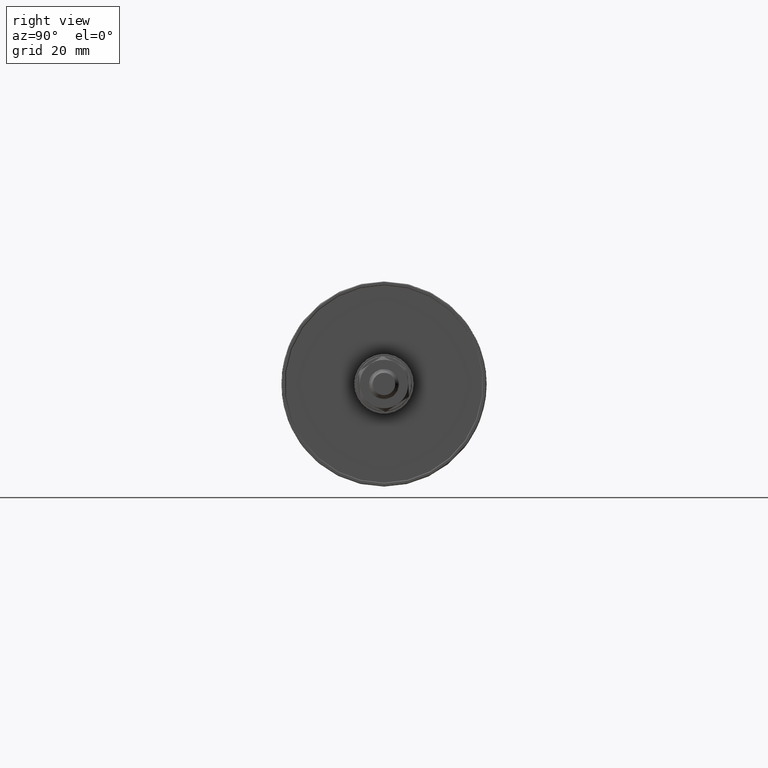
[diagram: clean part render]
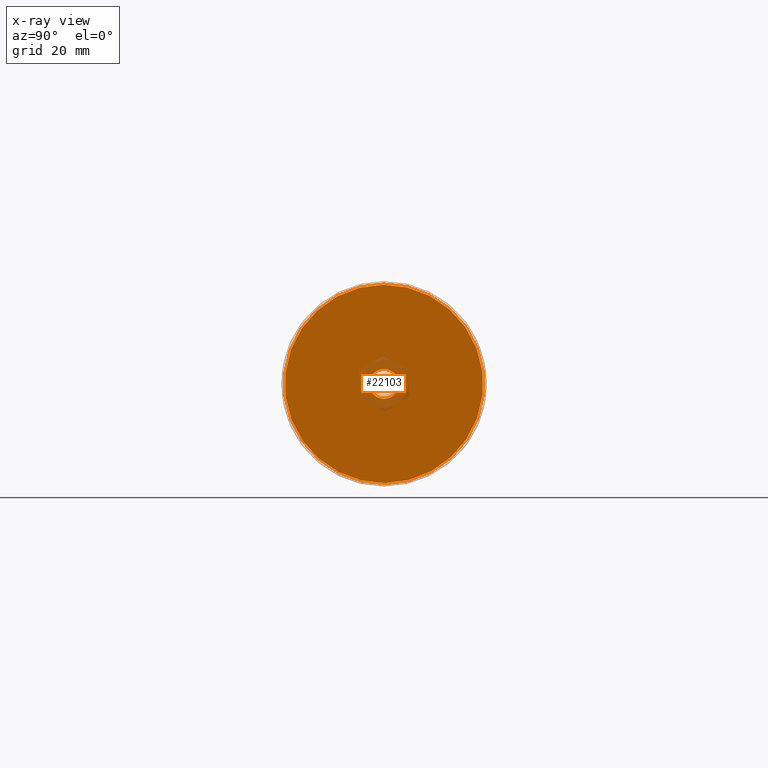
[diagram: x-ray — body ghosted, one internal face saturated and labeled with its STEP entity id]
A machine part, right view, then the same camera in x-ray: the body is ghosted and one INTERNAL B-rep face — a face not visible from any outside direction — is saturated and labeled: STEP entity #22103.
In plain terms, the highlighted planar face has unit normal (-1, 0, 0).
Its self-contained STEP definition (entity closure, byte-faithful):
#197 = VERTEX_POINT ( 'NONE', #13874 ) ;
#199 = DIRECTION ( 'NONE',  ( -1.224646799147353454E-16, 1.000000000000000000, 0.000000000000000000 ) ) ;
#784 = EDGE_LOOP ( 'NONE', ( #7041, #6694 ) ) ;
#848 = EDGE_CURVE ( 'NONE', #19541, #2161, #11172, .T. ) ;
#1103 = EDGE_LOOP ( 'NONE', ( #9398, #19747 ) ) ;
#1208 = CIRCLE ( 'NONE', #24588, 26.60000000000000142 ) ;
#2161 = VERTEX_POINT ( 'NONE', #10957 ) ;
#2489 = CARTESIAN_POINT ( 'NONE',  ( 1.383850883036509659E-15, 4.000000000000000000, 0.000000000000000000 ) ) ;
#2618 = CARTESIAN_POINT ( 'NONE',  ( 6.515120971463921399E-15, -26.60000000000000142, 0.000000000000000000 ) ) ;
#3091 = AXIS2_PLACEMENT_3D ( 'NONE', #22031, #6385, #16126 ) ;
#3737 = CIRCLE ( 'NONE', #20495, 4.000000000000000000 ) ;
#4060 = PLANE ( 'NONE',  #22250 ) ;
#4312 = EDGE_CURVE ( 'NONE', #17473, #197, #3737, .T. ) ;
#4606 = DIRECTION ( 'NONE',  ( 1.000000000000000000, 1.224646799147353454E-16, -0.000000000000000000 ) ) ;
#6385 = DIRECTION ( 'NONE',  ( 1.000000000000000000, 1.224646799147353454E-16, -0.000000000000000000 ) ) ;
#6546 = DIRECTION ( 'NONE',  ( -1.224646799147353700E-16, 1.000000000000000000, 0.000000000000000000 ) ) ;
#6676 = DIRECTION ( 'NONE',  ( 1.000000000000000000, 1.224646799147353454E-16, -0.000000000000000000 ) ) ;
#6694 = ORIENTED_EDGE ( 'NONE', *, *, #16311, .T. ) ;
#7041 = ORIENTED_EDGE ( 'NONE', *, *, #848, .T. ) ;
#9398 = ORIENTED_EDGE ( 'NONE', *, *, #24305, .F. ) ;
#10957 = CARTESIAN_POINT ( 'NONE',  ( 0.000000000000000000, 26.60000000000000142, 3.263683719727696195E-15 ) ) ;
#11172 = CIRCLE ( 'NONE', #18480, 26.60000000000000142 ) ;
#12067 = DIRECTION ( 'NONE',  ( 1.000000000000000000, 1.224646799147353454E-16, -0.000000000000000000 ) ) ;
#12439 = DIRECTION ( 'NONE',  ( -1.224646799147353700E-16, 1.000000000000000000, 0.000000000000000000 ) ) ;
#13874 = CARTESIAN_POINT ( 'NONE',  ( 0.000000000000000000, 4.000000000000000000, 0.000000000000000000 ) ) ;
#16126 = DIRECTION ( 'NONE',  ( -1.224646799147353454E-16, 1.000000000000000000, 0.000000000000000000 ) ) ;
#16311 = EDGE_CURVE ( 'NONE', #2161, #19541, #1208, .T. ) ;
#16421 = CARTESIAN_POINT ( 'NONE',  ( 3.257560485731960700E-15, 3.989361021880543645E-31, 0.000000000000000000 ) ) ;
#17473 = VERTEX_POINT ( 'NONE', #21134 ) ;
#17769 = FACE_OUTER_BOUND ( 'NONE', #784, .T. ) ;
#18177 = CARTESIAN_POINT ( 'NONE',  ( 4.898587196589413815E-16, 5.999039130647432621E-32, 0.000000000000000000 ) ) ;
#18224 = CIRCLE ( 'NONE', #3091, 4.000000000000000000 ) ;
#18304 = DIRECTION ( 'NONE',  ( -1.224646799147353454E-16, 1.000000000000000000, 0.000000000000000000 ) ) ;
#18480 = AXIS2_PLACEMENT_3D ( 'NONE', #16421, #6676, #6546 ) ;
#19541 = VERTEX_POINT ( 'NONE', #2618 ) ;
#19747 = ORIENTED_EDGE ( 'NONE', *, *, #4312, .F. ) ;
#20049 = DIRECTION ( 'NONE',  ( 1.000000000000000000, 1.224646799147353454E-16, -0.000000000000000000 ) ) ;
#20495 = AXIS2_PLACEMENT_3D ( 'NONE', #18177, #12067, #18304 ) ;
#21134 = CARTESIAN_POINT ( 'NONE',  ( 9.797174393178827630E-16, -4.000000000000000000, 4.898587196589412829E-16 ) ) ;
#22031 = CARTESIAN_POINT ( 'NONE',  ( 4.898587196589413815E-16, 5.999039130647432621E-32, 0.000000000000000000 ) ) ;
#22103 = ADVANCED_FACE ( 'NONE', ( #17769, #23922 ), #4060, .T. ) ;
#22164 = CARTESIAN_POINT ( 'NONE',  ( 3.257560485731960700E-15, 3.989361021880543645E-31, 0.000000000000000000 ) ) ;
#22250 = AXIS2_PLACEMENT_3D ( 'NONE', #2489, #20049, #199 ) ;
#23922 = FACE_BOUND ( 'NONE', #1103, .T. ) ;
#24305 = EDGE_CURVE ( 'NONE', #197, #17473, #18224, .T. ) ;
#24588 = AXIS2_PLACEMENT_3D ( 'NONE', #22164, #4606, #12439 ) ;